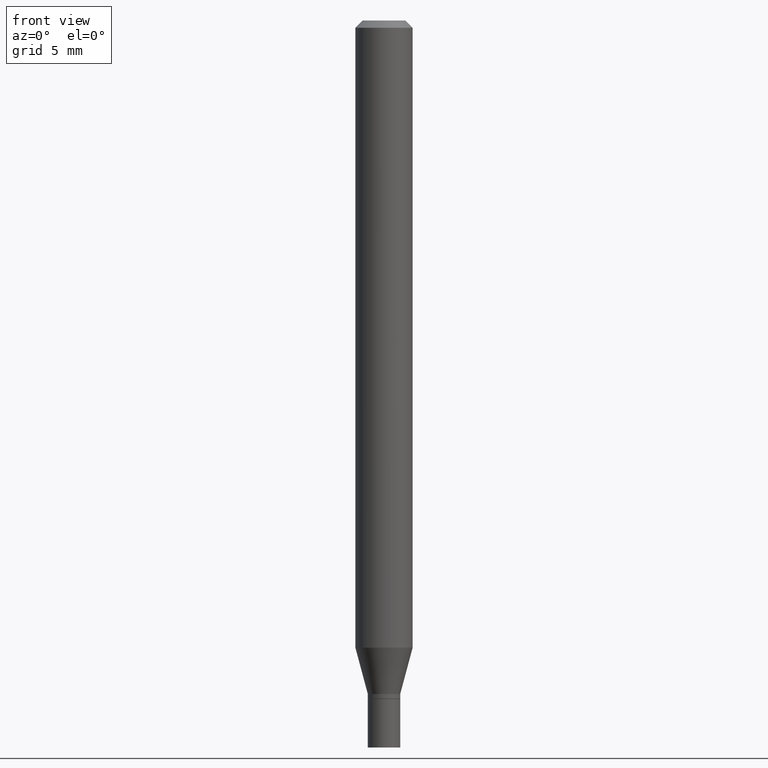
[diagram: clean part render]
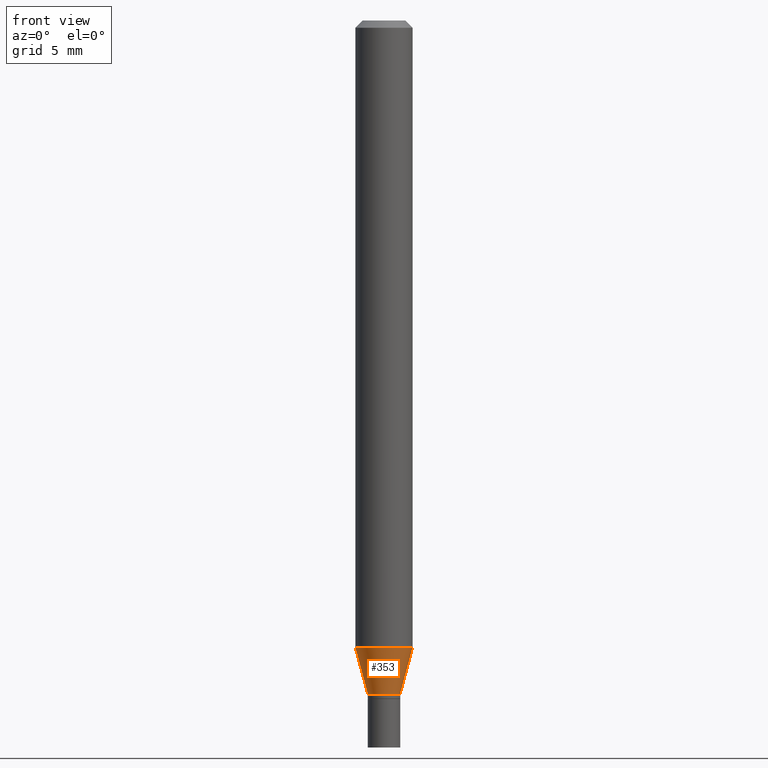
[diagram: same view with one face highlighted and labeled with its STEP entity id]
A machine part, front view. The second image highlights one B-rep face of the part: STEP entity #353.
In plain terms, the highlighted conical surface has half-angle 15 deg.
Its self-contained STEP definition (entity closure, byte-faithful):
#3 = DIRECTION ( 'NONE',  ( 1.000000000000000000, -6.982962677686273021E-15, 0.000000000000000000 ) ) ;
#5 = EDGE_CURVE ( 'NONE', #395, #404, #40, .T. ) ;
#9 = VECTOR ( 'NONE', #447, 39.37007874015748143 ) ;
#35 = ORIENTED_EDGE ( 'NONE', *, *, #99, .F. ) ;
#40 = CIRCLE ( 'NONE', #113, 0.03345000000000020179 ) ;
#46 = DIRECTION ( 'NONE',  ( 1.000000000000000000, -6.982962677686265133E-15, 0.000000000000000000 ) ) ;
#57 = DIRECTION ( 'NONE',  ( -2.445468806185136597E-29, 3.491481338843145583E-15, 1.000000000000000000 ) ) ;
#63 = EDGE_CURVE ( 'NONE', #83, #92, #232, .T. ) ;
#73 = CARTESIAN_POINT ( 'NONE',  ( 0.05904999999999999832, -4.930528539367636810E-15, -1.294059499326237761 ) ) ;
#83 = VERTEX_POINT ( 'NONE', #224 ) ;
#84 = CARTESIAN_POINT ( 'NONE',  ( 0.03345000000000020179, -5.085342570025042633E-15, -1.389600000000000168 ) ) ;
#88 = CARTESIAN_POINT ( 'NONE',  ( 3.398223453074866122E-29, -4.851762468456435200E-15, -1.389600000000000168 ) ) ;
#92 = VERTEX_POINT ( 'NONE', #73 ) ;
#99 = EDGE_CURVE ( 'NONE', #395, #83, #434, .T. ) ;
#113 = AXIS2_PLACEMENT_3D ( 'NONE', #255, #142, #46 ) ;
#140 = DIRECTION ( 'NONE',  ( -0.2588190451025209615, 5.211531920934547097E-15, 0.9659258262890682012 ) ) ;
#142 = DIRECTION ( 'NONE',  ( -2.445468806185136597E-29, 3.491481338843145583E-15, 1.000000000000000000 ) ) ;
#163 = ORIENTED_EDGE ( 'NONE', *, *, #63, .F. ) ;
#199 = ORIENTED_EDGE ( 'NONE', *, *, #288, .T. ) ;
#212 = CARTESIAN_POINT ( 'NONE',  ( 0.03345000000000020179, -5.085342570025042633E-15, -1.389600000000000168 ) ) ;
#224 = CARTESIAN_POINT ( 'NONE',  ( -0.05904999999999999832, -4.098609107783923974E-15, -1.294059499326237761 ) ) ;
#232 = CIRCLE ( 'NONE', #289, 0.05904999999999999832 ) ;
#255 = CARTESIAN_POINT ( 'NONE',  ( 3.398223453074866122E-29, -4.851762468456435200E-15, -1.389600000000000168 ) ) ;
#275 = EDGE_LOOP ( 'NONE', ( #35, #306, #199, #163 ) ) ;
#276 = VECTOR ( 'NONE', #140, 39.37007874015748143 ) ;
#288 = EDGE_CURVE ( 'NONE', #404, #92, #304, .T. ) ;
#289 = AXIS2_PLACEMENT_3D ( 'NONE', #294, #330, #3 ) ;
#294 = CARTESIAN_POINT ( 'NONE',  ( 3.164582138949869656E-29, -4.518184593250262678E-15, -1.294059499326237761 ) ) ;
#304 = LINE ( 'NONE', #84, #9 ) ;
#306 = ORIENTED_EDGE ( 'NONE', *, *, #5, .T. ) ;
#330 = DIRECTION ( 'NONE',  ( -2.445468806185136597E-29, 3.491481338843145583E-15, 1.000000000000000000 ) ) ;
#353 = ADVANCED_FACE ( 'NONE', ( #377 ), #446, .T. ) ;
#377 = FACE_OUTER_BOUND ( 'NONE', #275, .T. ) ;
#395 = VERTEX_POINT ( 'NONE', #429 ) ;
#404 = VERTEX_POINT ( 'NONE', #212 ) ;
#405 = AXIS2_PLACEMENT_3D ( 'NONE', #88, #57, #450 ) ;
#429 = CARTESIAN_POINT ( 'NONE',  ( -0.03345000000000020179, -4.356347515564302509E-15, -1.389600000000000168 ) ) ;
#434 = LINE ( 'NONE', #443, #276 ) ;
#443 = CARTESIAN_POINT ( 'NONE',  ( -0.03345000000000020179, -4.614085923344681043E-15, -1.389600000000000168 ) ) ;
#446 = CONICAL_SURFACE ( 'NONE', #405, 0.03345000000000020179, 0.2617993877991496299 ) ;
#447 = DIRECTION ( 'NONE',  ( 0.2588190451025209615, 1.565188264969624926E-15, 0.9659258262890682012 ) ) ;
#450 = DIRECTION ( 'NONE',  ( 1.000000000000000000, -6.982962677686265133E-15, 0.000000000000000000 ) ) ;